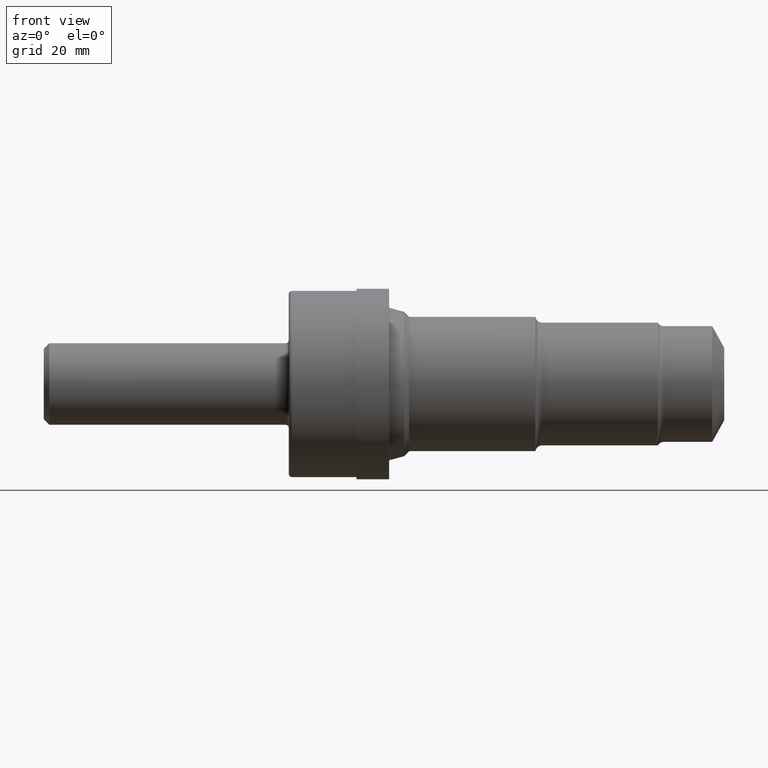
[diagram: clean part render]
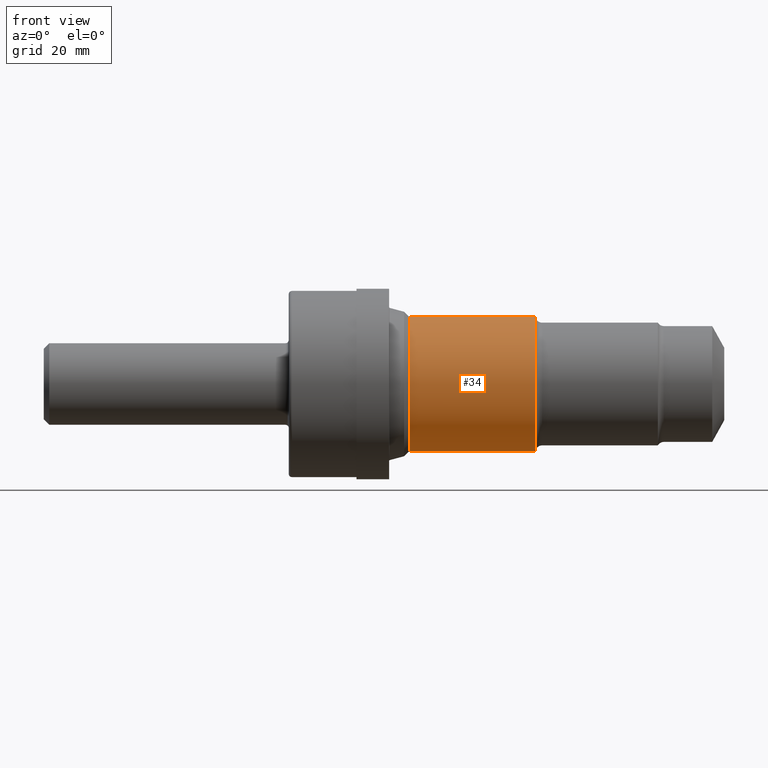
[diagram: same view with one face highlighted and labeled with its STEP entity id]
A machine part, front view. The second image highlights one B-rep face of the part: STEP entity #34.
In plain terms, the highlighted cylindrical surface (partial cylindrical patch) has radius 15.6718 mm, axis along (-1, -0, -0).
Its self-contained STEP definition (entity closure, byte-faithful):
#11 = DIRECTION ( 'NONE',  ( -1.000000000000000000, -0.0000000000000000000, -0.0000000000000000000 ) ) ;
#24 = CARTESIAN_POINT ( 'NONE',  ( 0.0000000000000000000, 0.0000000000000000000, 0.0000000000000000000 ) ) ;
#34 = ADVANCED_FACE ( 'NONE', ( #624 ), #402, .T. ) ;
#50 = EDGE_LOOP ( 'NONE', ( #259, #407, #305, #788 ) ) ;
#54 = VERTEX_POINT ( 'NONE', #85 ) ;
#58 = VERTEX_POINT ( 'NONE', #303 ) ;
#85 = CARTESIAN_POINT ( 'NONE',  ( 3.356523011444505045, 0.0000000000000000000, 0.6169999999999999929 ) ) ;
#93 = EDGE_CURVE ( 'NONE', #58, #632, #562, .T. ) ;
#152 = DIRECTION ( 'NONE',  ( -1.000000000000000000, -0.0000000000000000000, -0.0000000000000000000 ) ) ;
#206 = DIRECTION ( 'NONE',  ( -1.000000000000000000, -0.0000000000000000000, -0.0000000000000000000 ) ) ;
#240 = EDGE_CURVE ( 'NONE', #632, #54, #908, .T. ) ;
#259 = ORIENTED_EDGE ( 'NONE', *, *, #289, .F. ) ;
#289 = EDGE_CURVE ( 'NONE', #58, #540, #313, .T. ) ;
#303 = CARTESIAN_POINT ( 'NONE',  ( 4.516000000000000902, 7.556070750739168581E-17, -0.6169999999999999929 ) ) ;
#305 = ORIENTED_EDGE ( 'NONE', *, *, #240, .T. ) ;
#313 = LINE ( 'NONE', #530, #866 ) ;
#330 = EDGE_CURVE ( 'NONE', #540, #54, #823, .T. ) ;
#402 = CYLINDRICAL_SURFACE ( 'NONE', #906, 0.6169999999999999929 ) ;
#407 = ORIENTED_EDGE ( 'NONE', *, *, #93, .T. ) ;
#453 = CARTESIAN_POINT ( 'NONE',  ( 0.0000000000000000000, 0.0000000000000000000, 0.6169999999999999929 ) ) ;
#479 = CARTESIAN_POINT ( 'NONE',  ( 4.516000000000000902, 0.0000000000000000000, 0.6169999999999999929 ) ) ;
#530 = CARTESIAN_POINT ( 'NONE',  ( 0.0000000000000000000, 7.556070750739168581E-17, -0.6169999999999999929 ) ) ;
#540 = VERTEX_POINT ( 'NONE', #701 ) ;
#562 = CIRCLE ( 'NONE', #608, 0.6169999999999999929 ) ;
#605 = DIRECTION ( 'NONE',  ( -1.000000000000000000, -0.0000000000000000000, -0.0000000000000000000 ) ) ;
#608 = AXIS2_PLACEMENT_3D ( 'NONE', #741, #206, #668 ) ;
#613 = CARTESIAN_POINT ( 'NONE',  ( 3.356523011444505045, 0.0000000000000000000, 0.0000000000000000000 ) ) ;
#624 = FACE_OUTER_BOUND ( 'NONE', #50, .T. ) ;
#632 = VERTEX_POINT ( 'NONE', #479 ) ;
#668 = DIRECTION ( 'NONE',  ( 0.0000000000000000000, 0.0000000000000000000, 1.000000000000000000 ) ) ;
#689 = DIRECTION ( 'NONE',  ( 0.0000000000000000000, 0.0000000000000000000, 1.000000000000000000 ) ) ;
#697 = DIRECTION ( 'NONE',  ( -1.000000000000000000, -0.0000000000000000000, -0.0000000000000000000 ) ) ;
#701 = CARTESIAN_POINT ( 'NONE',  ( 3.356523011444505045, 7.840942036000211675E-17, -0.6169999999999999929 ) ) ;
#723 = VECTOR ( 'NONE', #11, 39.37007874015748143 ) ;
#741 = CARTESIAN_POINT ( 'NONE',  ( 4.516000000000000902, 0.0000000000000000000, 0.0000000000000000000 ) ) ;
#778 = AXIS2_PLACEMENT_3D ( 'NONE', #613, #152, #689 ) ;
#788 = ORIENTED_EDGE ( 'NONE', *, *, #330, .F. ) ;
#823 = CIRCLE ( 'NONE', #778, 0.6169999999999999929 ) ;
#866 = VECTOR ( 'NONE', #605, 39.37007874015748143 ) ;
#896 = DIRECTION ( 'NONE',  ( 0.0000000000000000000, 0.0000000000000000000, 1.000000000000000000 ) ) ;
#906 = AXIS2_PLACEMENT_3D ( 'NONE', #24, #697, #896 ) ;
#908 = LINE ( 'NONE', #453, #723 ) ;